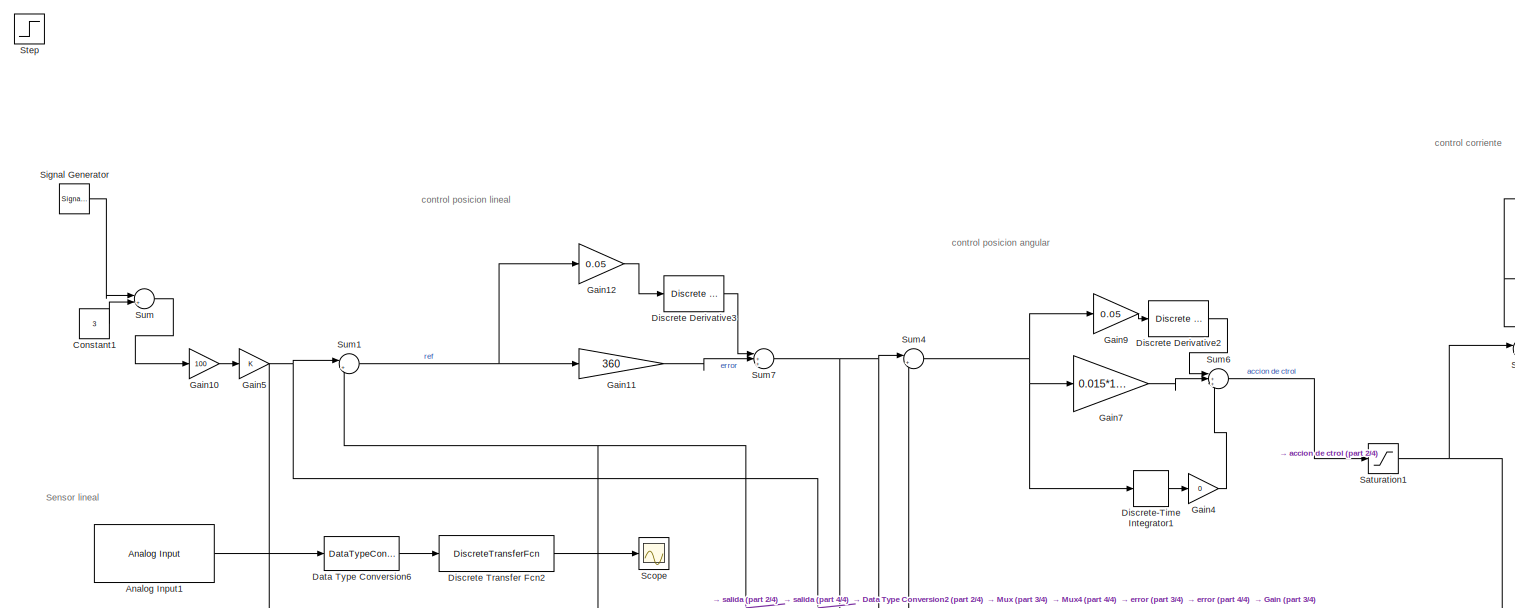
[diagram: root canvas - part 1/4, top left region]
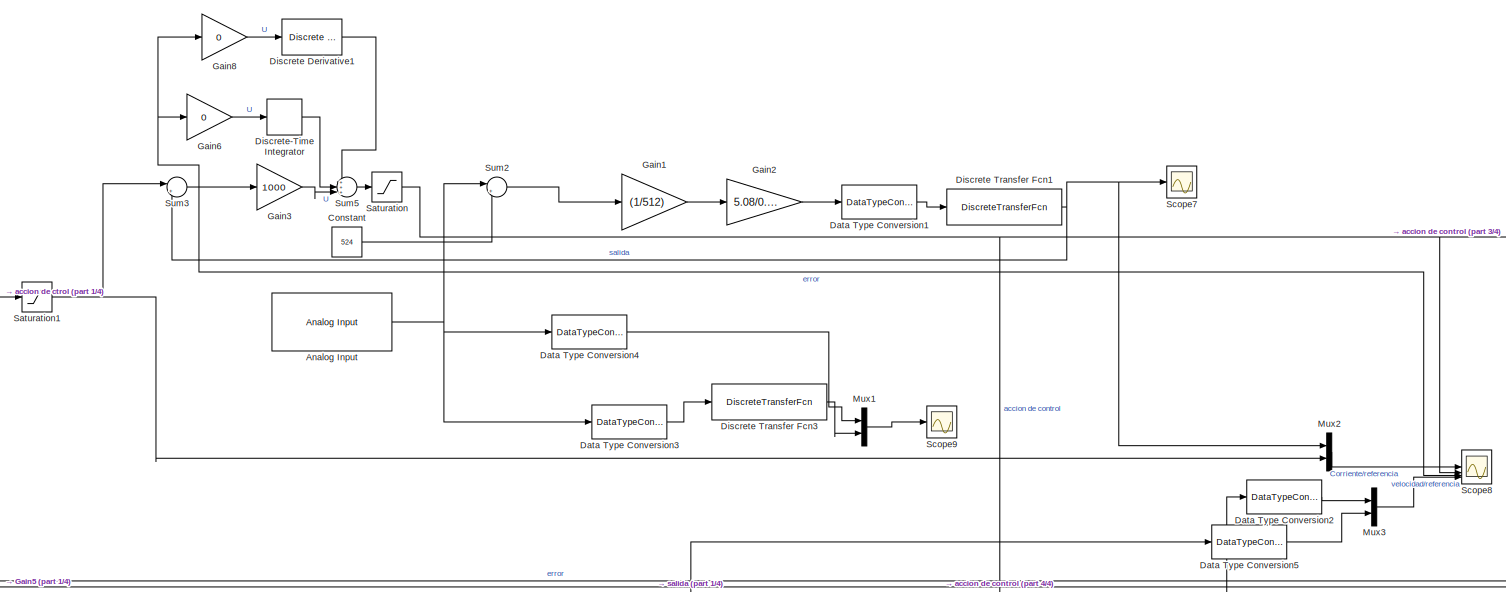
[diagram: root canvas - part 2/4, central region]
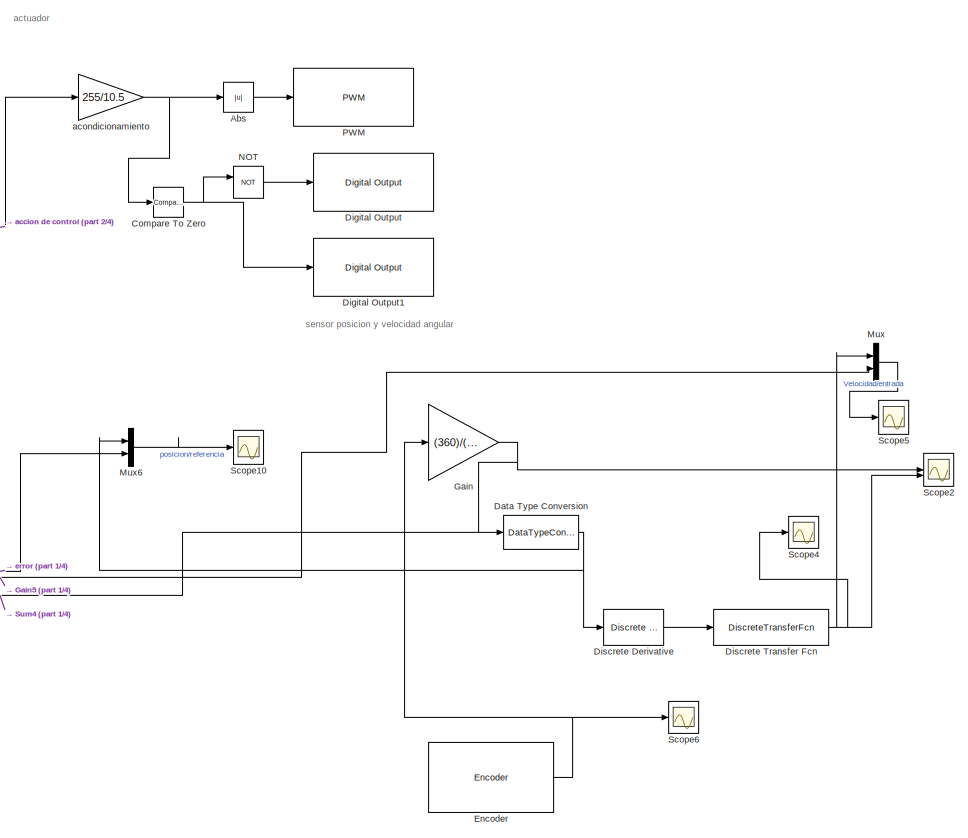
[diagram: root canvas - part 3/4, right side, full height]
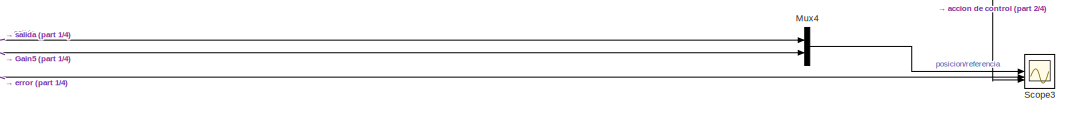
[diagram: root canvas - part 4/4, bottom center region]
MODEL slx_8035285f2db5
KIND model
CONFIG AbsTol = auto
CONFIG EnableMultiTasking = on
CONFIG FixedStep = 0.0005
CONFIG MaxStep = auto
CONFIG MinStep = auto
CONFIG RelTol = 1e-3
CONFIG SampleTimeConstraint = Unconstrained
CONFIG SolverName = FixedStepDiscrete
CONFIG StartTime = 0.0
CONFIG StopTime = inf
BLOCK [Abs] Abs
  SaturateOnIntegerOverflow = off
BLOCK [Reference] Analog Input  REF=arduinolib/Analog Input
  SourceBlock = arduinolib/Analog Input
  SourceType = Arduino Analog Input
BLOCK [Reference] Analog Input1  REF=arduinolib/Analog Input
  SourceBlock = arduinolib/Analog Input
  SourceType = Arduino Analog Input
BLOCK [Reference] Compare To Zero  REF=simulink/Logic and Bit
Operations/Compare
To Zero
  SourceBlock = simulink/Logic and Bit\nOperations/Compare\nTo Zero
  SourceType = Compare To Zero
BLOCK [Constant] Constant
  Value = 524
BLOCK [Constant] Constant1
  Value = 3
BLOCK [DataTypeConversion] Data Type Conversion
  RndMeth = Floor
  SaturateOnIntegerOverflow = off
BLOCK [DataTypeConversion] Data Type Conversion1
  RndMeth = Floor
  SaturateOnIntegerOverflow = off
BLOCK [DataTypeConversion] Data Type Conversion2
  RndMeth = Floor
  SaturateOnIntegerOverflow = off
BLOCK [DataTypeConversion] Data Type Conversion3
  RndMeth = Floor
  SaturateOnIntegerOverflow = off
BLOCK [DataTypeConversion] Data Type Conversion4
  RndMeth = Floor
  SaturateOnIntegerOverflow = off
BLOCK [DataTypeConversion] Data Type Conversion5
  RndMeth = Floor
  SaturateOnIntegerOverflow = off
BLOCK [DataTypeConversion] Data Type Conversion6
  RndMeth = Floor
  SaturateOnIntegerOverflow = off
BLOCK [Reference] Digital Output  REF=arduinolib/Digital Output
  SourceBlock = arduinolib/Digital Output
  SourceType = Arduino Digital Output
BLOCK [Reference] Digital Output1  REF=arduinolib/Digital Output
  SourceBlock = arduinolib/Digital Output
  SourceType = Arduino Digital Output
BLOCK [Reference] Discrete Derivative  REF=simulink/Quick Insert/Discrete/Discrete Derivative
  SourceBlock = simulink/Quick Insert/Discrete/Discrete Derivative
  SourceType = Discrete Derivative
BLOCK [Reference] Discrete Derivative1  REF=simulink/Discrete/Discrete Derivative
  SourceBlock = simulink/Discrete/Discrete Derivative
  SourceType = Discrete Derivative
BLOCK [Reference] Discrete Derivative2  REF=simulink/Discrete/Discrete Derivative
  SourceBlock = simulink/Discrete/Discrete Derivative
  SourceType = Discrete Derivative
BLOCK [Reference] Discrete Derivative3  REF=simulink/Discrete/Discrete Derivative
  SourceBlock = simulink/Discrete/Discrete Derivative
  SourceType = Discrete Derivative
BLOCK [DiscreteTransferFcn] Discrete Transfer Fcn
  Denominator = [1 -0.9991]
  InputPortMap = u0
  Numerator = [0.000942]
BLOCK [DiscreteTransferFcn] Discrete Transfer Fcn1
  Denominator = [1 -0.9844]
  InputPortMap = u0
  Numerator = [0.01559]
BLOCK [DiscreteTransferFcn] Discrete Transfer Fcn2
  Denominator = [1 -0.5335]
  InputPortMap = u0
  Numerator = [0.4665]
BLOCK [DiscreteTransferFcn] Discrete Transfer Fcn3
  Denominator = [1 -0.9844]
  InputPortMap = u0
  Numerator = [0.01559]
BLOCK [DiscreteIntegrator] Discrete-Time Integrator
  ICPrevOutput = DiscIntNeverNeededParam
  ICPrevScaledInput = DiscIntNeverNeededParam
  InitialConditionSetting = Auto
  SampleTime = -1
BLOCK [DiscreteIntegrator] Discrete-Time Integrator1
  ICPrevOutput = DiscIntNeverNeededParam
  ICPrevScaledInput = DiscIntNeverNeededParam
  InitialConditionSetting = Auto
  SampleTime = -1
BLOCK [Reference] Encoder  REF=arduinosensorlib/Encoder
  SourceBlock = arduinosensorlib/Encoder
  SourceType = Arduino Rotary Encoder
BLOCK [Gain] Gain
  Gain = (360)/(12*128)
BLOCK [Gain] Gain1
  Gain = (1/512)
BLOCK [Gain] Gain10
  Gain = 100
BLOCK [Gain] Gain11
  Gain = 360
BLOCK [Gain] Gain12
  Gain = 0.05
BLOCK [Gain] Gain2
  Gain = 5.08/0.185
BLOCK [Gain] Gain3
  Gain = 1000
BLOCK [Gain] Gain4
  Gain = 0
BLOCK [Gain] Gain5
BLOCK [Gain] Gain6
  Gain = 0
BLOCK [Gain] Gain7
  Gain = 0.015*100
BLOCK [Gain] Gain8
  Gain = 0
BLOCK [Gain] Gain9
  Gain = 0.05
BLOCK [Mux] Mux
  DisplayOption = bar
  Inputs = 2
BLOCK [Mux] Mux1
  DisplayOption = bar
  Inputs = 2
BLOCK [Mux] Mux2
  DisplayOption = bar
  Inputs = 2
BLOCK [Mux] Mux3
  DisplayOption = bar
  Inputs = 2
BLOCK [Mux] Mux4
  DisplayOption = bar
  Inputs = 2
BLOCK [Mux] Mux6
  DisplayOption = bar
  Inputs = 2
BLOCK [Logic] NOT
  AllPortsSameDT = off
  IconShape = distinctive
  Operator = NOT
  OutDataTypeStr = boolean
BLOCK [Reference] PWM  REF=arduinolib/PWM
  SourceBlock = arduinolib/PWM
  SourceType = Arduino PWM
BLOCK [Saturate] Saturation
  LowerLimit = -10.5
  UpperLimit = 10.5
BLOCK [Saturate] Saturation1
  LowerLimit = -3
  UpperLimit = 3
BLOCK [Scope] Scope
  Floating = off
  NumInputPorts = 1
  ScopeSpecificationString = Simulink.scopes.TimeScopeBlockCfg('CurrentConfiguration', extmgr.ConfigurationSet(extmgr.Configuration('Core','General UI',true),extmgr.Configuration('Core','Source UI',true),extmgr.Configuration('Sources','WiredSimulink',true,'DataLoggingVariableName','ScopeData1'),extmgr.Configuration('Visuals','Time Domain',true,'SerializedDisplays',{struct('MinYLimReal','307.26418','MaxYLimReal','486.31741','Y...<+1773ch>
BLOCK [Scope] Scope10
  Floating = off
  NumInputPorts = 3
  ScopeSpecificationString = Simulink.scopes.TimeScopeBlockCfg('CurrentConfiguration', extmgr.ConfigurationSet(extmgr.Configuration('Core','General UI',true),extmgr.Configuration('Core','Source UI',true),extmgr.Configuration('Sources','WiredSimulink',true,'DataLoggingVariableName','ScopeData1'),extmgr.Configuration('Visuals','Time Domain',true,'SerializedDisplays',{struct('MinYLimReal','-450.9082','MaxYLimReal','451.14258','Y...<+2728ch>
BLOCK [Scope] Scope2
  Floating = off
  NumInputPorts = 2
  ScopeSpecificationString = Simulink.scopes.TimeScopeBlockCfg('CurrentConfiguration', extmgr.ConfigurationSet(extmgr.Configuration('Core','General UI',true),extmgr.Configuration('Core','Source UI',true),extmgr.Configuration('Sources','WiredSimulink',true,'DataLoggingVariableName','ScopeData1'),extmgr.Configuration('Visuals','Time Domain',true,'SerializedDisplays',{struct('MinYLimReal','-15.26367','MaxYLimReal','139.7168','YL...<+2087ch>
BLOCK [Scope] Scope3
  Floating = off
  NumInputPorts = 3
  ScopeSpecificationString = Simulink.scopes.TimeScopeBlockCfg('CurrentConfiguration', extmgr.ConfigurationSet(extmgr.Configuration('Core','General UI',true),extmgr.Configuration('Core','Source UI',true),extmgr.Configuration('Sources','WiredSimulink',true,'DataLoggingVariableName','ScopeData2'),extmgr.Configuration('Visuals','Time Domain',true,'SerializedDisplays',{struct('MinYLimReal','-55.10572','MaxYLimReal','495.95152','Y...<+2732ch>
BLOCK [Scope] Scope4
  Floating = off
  NumInputPorts = 1
  ScopeSpecificationString = Simulink.scopes.TimeScopeBlockCfg('CurrentConfiguration', extmgr.ConfigurationSet(extmgr.Configuration('Core','General UI',true),extmgr.Configuration('Core','Source UI',true),extmgr.Configuration('Sources','WiredSimulink',true,'DataLoggingVariableName','ScopeData1','SampleTime','0.0005'),extmgr.Configuration('Visuals','Time Domain',true,'SerializedDisplays',{struct('MinYLimReal','-1000','MaxYLimRe...<+1773ch>
BLOCK [Scope] Scope5
  Floating = off
  NumInputPorts = 3
  ScopeSpecificationString = Simulink.scopes.TimeScopeBlockCfg('CurrentConfiguration', extmgr.ConfigurationSet(extmgr.Configuration('Core','General UI',true),extmgr.Configuration('Core','Source UI',true),extmgr.Configuration('Sources','WiredSimulink',true,'DataLoggingVariableName','ScopeData1'),extmgr.Configuration('Visuals','Time Domain',true,'SerializedDisplays',{struct('MinYLimReal','-3.92556','MaxYLimReal','9.32506','YLab...<+3207ch>
BLOCK [Scope] Scope6
  Floating = off
  NumInputPorts = 1
  ScopeSpecificationString = Simulink.scopes.TimeScopeBlockCfg('CurrentConfiguration', extmgr.ConfigurationSet(extmgr.Configuration('Core','General UI',true),extmgr.Configuration('Core','Source UI',true),extmgr.Configuration('Sources','WiredSimulink',true,'DataLoggingVariableName','ScopeData1','SampleTime','0.0005'),extmgr.Configuration('Visuals','Time Domain',true,'SerializedDisplays',{struct('MinYLimReal','-202.00000','MaxY...<+1802ch>
BLOCK [Scope] Scope7
  Floating = off
  NumInputPorts = 1
  ScopeSpecificationString = Simulink.scopes.TimeScopeBlockCfg('CurrentConfiguration', extmgr.ConfigurationSet(extmgr.Configuration('Core','General UI',true),extmgr.Configuration('Core','Source UI',true),extmgr.Configuration('Sources','WiredSimulink',true,'DataLoggingVariableName','ScopeData1'),extmgr.Configuration('Visuals','Time Domain',true,'SerializedDisplays',{struct('MinYLimReal','-1.24766','MaxYLimReal','-1.18767','YLa...<+1466ch>
BLOCK [Scope] Scope8
  Floating = off
  NumInputPorts = 4
  ScopeSpecificationString = Simulink.scopes.TimeScopeBlockCfg('CurrentConfiguration', extmgr.ConfigurationSet(extmgr.Configuration('Core','General UI',true),extmgr.Configuration('Core','Source UI',true),extmgr.Configuration('Sources','WiredSimulink',true,'DataLoggingVariableName','ScopeData1'),extmgr.Configuration('Visuals','Time Domain',true,'SerializedDisplays',{struct('MinYLimReal','-3.75','MaxYLimReal','3.75','YLabelReal...<+3531ch>
BLOCK [Scope] Scope9
  Floating = off
  NumInputPorts = 1
  ScopeSpecificationString = Simulink.scopes.TimeScopeBlockCfg('CurrentConfiguration', extmgr.ConfigurationSet(extmgr.Configuration('Core','General UI',true),extmgr.Configuration('Core','Source UI',true),extmgr.Configuration('Sources','WiredSimulink',true,'DataLoggingVariableName','ScopeData2'),extmgr.Configuration('Visuals','Time Domain',true,'SerializedDisplays',{struct('MinYLimReal','526.71053','MaxYLimReal','538.27647','Y...<+1492ch>
BLOCK [SignalGenerator] Signal Generator
  Frequency = 0.2
  WaveForm = square
BLOCK [Step] Step
  SampleTime = 0
BLOCK [Sum] Sum
  Inputs = |++
BLOCK [Sum] Sum1
  Inputs = |+-
BLOCK [Sum] Sum2
  Inputs = |+-
BLOCK [Sum] Sum3
  Inputs = |+-
BLOCK [Sum] Sum4
  Inputs = |+-
BLOCK [Sum] Sum5
  Inputs = +++|
BLOCK [Sum] Sum6
  Inputs = |+++
BLOCK [Sum] Sum7
  Inputs = |+++
BLOCK [Gain] acondicionamiento
  Gain = 255/10.5
ANNOTATION (root): Sensor lineal
ANNOTATION (root): actuador
ANNOTATION (root): control corriente
ANNOTATION (root): control posicion angular
ANNOTATION (root): control posicion lineal
ANNOTATION (root): sensor posicion y velocidad angular
LINE Abs:1 -> PWM:1
LINE Analog Input1:1 -> Data Type Conversion6:1
NET Analog Input:1 -> Data Type Conversion3:1, Data Type Conversion4:1, Sum2:1
NET Compare To Zero:1 -> Digital Output1:1, NOT:1
LINE Constant1:1 -> Sum:2
LINE Constant:1 -> Sum2:2
LINE Data Type Conversion1:1 -> Discrete Transfer Fcn1:1
LINE Data Type Conversion2:1 -> Mux3:1
LINE Data Type Conversion3:1 -> Discrete Transfer Fcn3:1
LINE Data Type Conversion4:1 -> Mux1:1
LINE Data Type Conversion5:1 -> Mux3:2
LINE Data Type Conversion6:1 -> Discrete Transfer Fcn2:1
NET Data Type Conversion:1 -> Discrete Derivative:1, Mux6:1
LINE Discrete Derivative1:1 -> Sum5:1
LINE Discrete Derivative2:1 -> Sum6:1
LINE Discrete Derivative3:1 -> Sum7:1
LINE Discrete Derivative:1 -> Discrete Transfer Fcn:1
NET Discrete Transfer Fcn1:1 -> Mux2:1, Scope7:1, Sum3:2
NET Discrete Transfer Fcn2:1 -> Data Type Conversion5:1, Mux4:1, Scope:1, Sum1:2
LINE Discrete Transfer Fcn3:1 -> Mux1:2
NET Discrete Transfer Fcn:1 -> Mux:1, Scope2:2, Scope4:1
LINE Discrete-Time Integrator1:1 -> Gain4:1
LINE Discrete-Time Integrator:1 -> Sum5:2
NET Encoder:1 -> Gain:1, Scope6:1
LINE Gain10:1 -> Gain5:1
LINE Gain11:1 -> Sum7:2
LINE Gain12:1 -> Discrete Derivative3:1
LINE Gain1:1 -> Gain2:1
LINE Gain2:1 -> Data Type Conversion1:1
LINE Gain3:1 -> Sum5:3
LINE Gain4:1 -> Sum6:3
NET Gain5:1 -> Data Type Conversion2:1, Mux4:2, Mux:2, Sum1:1
LINE Gain6:1 -> Discrete-Time Integrator:1
LINE Gain7:1 -> Sum6:2
LINE Gain8:1 -> Discrete Derivative1:1
LINE Gain9:1 -> Discrete Derivative2:1
NET Gain:1 -> Data Type Conversion:1, Scope2:1, Sum4:2
LINE Mux1:1 -> Scope9:1
LINE Mux2:1 -> Scope8:1
LINE Mux3:1 -> Scope8:4
LINE Mux4:1 -> Scope3:1
LINE Mux6:1 -> Scope10:1
LINE Mux:1 -> Scope5:1
LINE NOT:1 -> Digital Output:1
NET Saturation1:1 -> Mux2:2, Sum3:1
NET Saturation:1 -> Scope3:3, Scope8:2, acondicionamiento:1
LINE Signal Generator:1 -> Sum:1
NET Sum1:1 -> Gain11:1, Gain12:1
LINE Sum2:1 -> Gain1:1
NET Sum3:1 -> Gain3:1, Gain6:1, Gain8:1, Scope8:3
NET Sum4:1 -> Discrete-Time Integrator1:1, Gain7:1, Gain9:1
LINE Sum5:1 -> Saturation:1
LINE Sum6:1 -> Saturation1:1
NET Sum7:1 -> Mux6:2, Scope3:2, Sum4:1
LINE Sum:1 -> Gain10:1
NET acondicionamiento:1 -> Abs:1, Compare To Zero:1
note: NET lines group one-source signal fan-out (src -> all destinations, sorted); 1:1 wires keep LINE
